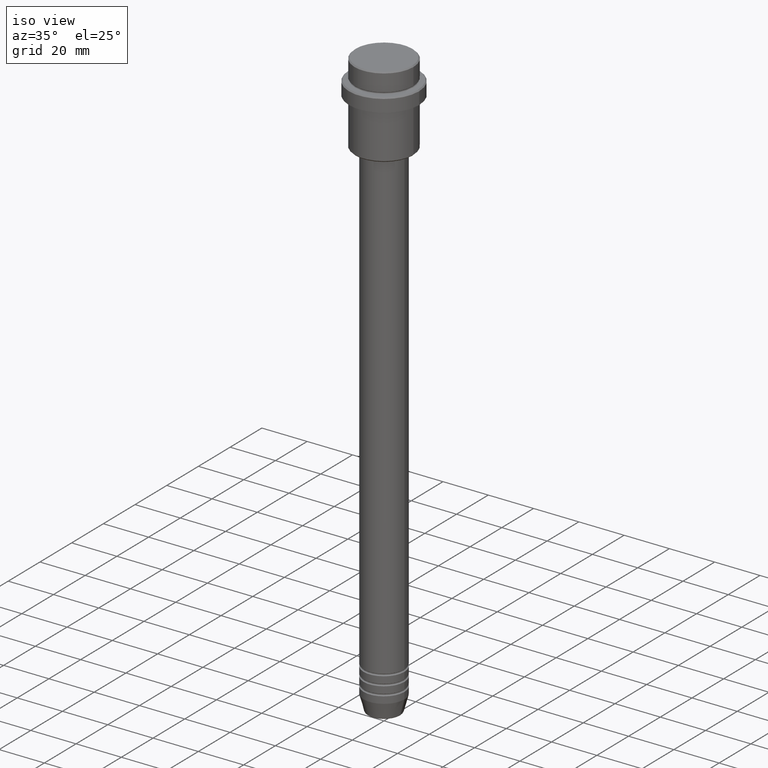
[diagram: clean part render]
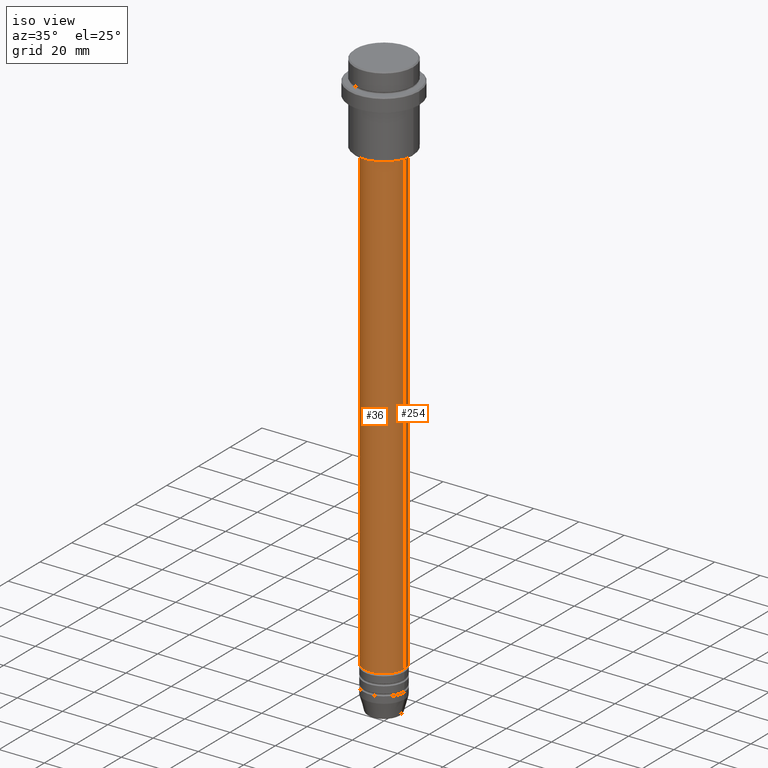
[diagram: same view with one multi-face feature highlighted, each face labeled with its STEP entity id]
A machine part, iso view. The highlighted faces form ONE feature: a constant-radius fillet chain: 2 tangent blend faces with common blend radius 9 mm. The faces share edges in the B-rep.
Their STEP definitions:
[1] entity #36 (Cylinder):
#11 = CARTESIAN_POINT ( 'NONE',  ( -9.000000000000001776, 1.102182119232617911E-15, -37.00000000000000711 ) ) ;
#13 = FACE_OUTER_BOUND ( 'NONE', #1058, .T. ) ;
#25 = AXIS2_PLACEMENT_3D ( 'NONE', #92, #1184, #972 ) ;
#36 = ADVANCED_FACE ( 'NONE', ( #13 ), #925, .T. ) ;
#92 = CARTESIAN_POINT ( 'NONE',  ( 0.000000000000000000, 0.000000000000000000, -37.00000000000000711 ) ) ;
#146 = VECTOR ( 'NONE', #1090, 1000.000000000000000 ) ;
#150 = EDGE_CURVE ( 'NONE', #804, #673, #511, .T. ) ;
#217 = CARTESIAN_POINT ( 'NONE',  ( 0.000000000000000000, 0.000000000000000000, -241.9999999999998863 ) ) ;
#359 = CARTESIAN_POINT ( 'NONE',  ( -9.000000000000000000, 1.102182119232617714E-15, -241.9999999999998863 ) ) ;
#428 = DIRECTION ( 'NONE',  ( 1.000000000000000000, 0.000000000000000000, 0.000000000000000000 ) ) ;
#476 = AXIS2_PLACEMENT_3D ( 'NONE', #217, #1409, #428 ) ;
#511 = LINE ( 'NONE', #753, #146 ) ;
#638 = AXIS2_PLACEMENT_3D ( 'NONE', #680, #898, #1327 ) ;
#661 = DIRECTION ( 'NONE',  ( -0.000000000000000000, -0.000000000000000000, 1.000000000000000000 ) ) ;
#669 = LINE ( 'NONE', #997, #946 ) ;
#673 = VERTEX_POINT ( 'NONE', #11 ) ;
#680 = CARTESIAN_POINT ( 'NONE',  ( 0.000000000000000000, 0.000000000000000000, 0.000000000000000000 ) ) ;
#741 = CIRCLE ( 'NONE', #25, 9.000000000000001776 ) ;
#753 = CARTESIAN_POINT ( 'NONE',  ( -9.000000000000001776, 1.102182119232617911E-15, 0.000000000000000000 ) ) ;
#796 = VERTEX_POINT ( 'NONE', #915 ) ;
#804 = VERTEX_POINT ( 'NONE', #359 ) ;
#826 = ORIENTED_EDGE ( 'NONE', *, *, #150, .F. ) ;
#842 = VERTEX_POINT ( 'NONE', #1041 ) ;
#898 = DIRECTION ( 'NONE',  ( -0.000000000000000000, -0.000000000000000000, 1.000000000000000000 ) ) ;
#915 = CARTESIAN_POINT ( 'NONE',  ( 9.000000000000001776, 0.000000000000000000, -37.00000000000000711 ) ) ;
#925 = CYLINDRICAL_SURFACE ( 'NONE', #638, 9.000000000000001776 ) ;
#946 = VECTOR ( 'NONE', #661, 1000.000000000000000 ) ;
#972 = DIRECTION ( 'NONE',  ( 1.000000000000000000, 0.000000000000000000, 0.000000000000000000 ) ) ;
#997 = CARTESIAN_POINT ( 'NONE',  ( 9.000000000000001776, 0.000000000000000000, 0.000000000000000000 ) ) ;
#1037 = ORIENTED_EDGE ( 'NONE', *, *, #1252, .T. ) ;
#1041 = CARTESIAN_POINT ( 'NONE',  ( 9.000000000000000000, 0.000000000000000000, -241.9999999999998863 ) ) ;
#1043 = ORIENTED_EDGE ( 'NONE', *, *, #1249, .T. ) ;
#1058 = EDGE_LOOP ( 'NONE', ( #826, #1037, #1043, #1135 ) ) ;
#1088 = EDGE_CURVE ( 'NONE', #673, #796, #741, .T. ) ;
#1090 = DIRECTION ( 'NONE',  ( -0.000000000000000000, -0.000000000000000000, 1.000000000000000000 ) ) ;
#1107 = CIRCLE ( 'NONE', #476, 9.000000000000000000 ) ;
#1135 = ORIENTED_EDGE ( 'NONE', *, *, #1088, .F. ) ;
#1184 = DIRECTION ( 'NONE',  ( -0.000000000000000000, -0.000000000000000000, 1.000000000000000000 ) ) ;
#1249 = EDGE_CURVE ( 'NONE', #842, #796, #669, .T. ) ;
#1252 = EDGE_CURVE ( 'NONE', #804, #842, #1107, .T. ) ;
#1327 = DIRECTION ( 'NONE',  ( 1.000000000000000000, 0.000000000000000000, 0.000000000000000000 ) ) ;
#1409 = DIRECTION ( 'NONE',  ( -0.000000000000000000, -0.000000000000000000, 1.000000000000000000 ) ) ;
[2] entity #254 (Cylinder):
#11 = CARTESIAN_POINT ( 'NONE',  ( -9.000000000000001776, 1.102182119232617911E-15, -37.00000000000000711 ) ) ;
#30 = DIRECTION ( 'NONE',  ( 1.000000000000000000, 0.000000000000000000, 0.000000000000000000 ) ) ;
#111 = DIRECTION ( 'NONE',  ( -0.000000000000000000, -0.000000000000000000, 1.000000000000000000 ) ) ;
#146 = VECTOR ( 'NONE', #1090, 1000.000000000000000 ) ;
#150 = EDGE_CURVE ( 'NONE', #804, #673, #511, .T. ) ;
#195 = CYLINDRICAL_SURFACE ( 'NONE', #923, 9.000000000000001776 ) ;
#201 = ORIENTED_EDGE ( 'NONE', *, *, #150, .T. ) ;
#205 = DIRECTION ( 'NONE',  ( 1.000000000000000000, 0.000000000000000000, 0.000000000000000000 ) ) ;
#245 = EDGE_CURVE ( 'NONE', #796, #673, #1055, .T. ) ;
#254 = ADVANCED_FACE ( 'NONE', ( #869 ), #195, .T. ) ;
#275 = ORIENTED_EDGE ( 'NONE', *, *, #360, .T. ) ;
#309 = CARTESIAN_POINT ( 'NONE',  ( 0.000000000000000000, 0.000000000000000000, -37.00000000000000711 ) ) ;
#359 = CARTESIAN_POINT ( 'NONE',  ( -9.000000000000000000, 1.102182119232617714E-15, -241.9999999999998863 ) ) ;
#360 = EDGE_CURVE ( 'NONE', #842, #804, #968, .T. ) ;
#417 = DIRECTION ( 'NONE',  ( -0.000000000000000000, -0.000000000000000000, 1.000000000000000000 ) ) ;
#511 = LINE ( 'NONE', #753, #146 ) ;
#527 = DIRECTION ( 'NONE',  ( -0.000000000000000000, -0.000000000000000000, 1.000000000000000000 ) ) ;
#637 = CARTESIAN_POINT ( 'NONE',  ( 0.000000000000000000, 0.000000000000000000, 0.000000000000000000 ) ) ;
#661 = DIRECTION ( 'NONE',  ( -0.000000000000000000, -0.000000000000000000, 1.000000000000000000 ) ) ;
#664 = CARTESIAN_POINT ( 'NONE',  ( 0.000000000000000000, 0.000000000000000000, -241.9999999999998863 ) ) ;
#669 = LINE ( 'NONE', #997, #946 ) ;
#673 = VERTEX_POINT ( 'NONE', #11 ) ;
#753 = CARTESIAN_POINT ( 'NONE',  ( -9.000000000000001776, 1.102182119232617911E-15, 0.000000000000000000 ) ) ;
#796 = VERTEX_POINT ( 'NONE', #915 ) ;
#804 = VERTEX_POINT ( 'NONE', #359 ) ;
#842 = VERTEX_POINT ( 'NONE', #1041 ) ;
#869 = FACE_OUTER_BOUND ( 'NONE', #1298, .T. ) ;
#915 = CARTESIAN_POINT ( 'NONE',  ( 9.000000000000001776, 0.000000000000000000, -37.00000000000000711 ) ) ;
#923 = AXIS2_PLACEMENT_3D ( 'NONE', #637, #527, #1198 ) ;
#946 = VECTOR ( 'NONE', #661, 1000.000000000000000 ) ;
#968 = CIRCLE ( 'NONE', #1012, 9.000000000000000000 ) ;
#997 = CARTESIAN_POINT ( 'NONE',  ( 9.000000000000001776, 0.000000000000000000, 0.000000000000000000 ) ) ;
#1012 = AXIS2_PLACEMENT_3D ( 'NONE', #664, #111, #30 ) ;
#1041 = CARTESIAN_POINT ( 'NONE',  ( 9.000000000000000000, 0.000000000000000000, -241.9999999999998863 ) ) ;
#1055 = CIRCLE ( 'NONE', #1257, 9.000000000000001776 ) ;
#1090 = DIRECTION ( 'NONE',  ( -0.000000000000000000, -0.000000000000000000, 1.000000000000000000 ) ) ;
#1122 = ORIENTED_EDGE ( 'NONE', *, *, #245, .F. ) ;
#1163 = ORIENTED_EDGE ( 'NONE', *, *, #1249, .F. ) ;
#1198 = DIRECTION ( 'NONE',  ( 1.000000000000000000, 0.000000000000000000, 0.000000000000000000 ) ) ;
#1249 = EDGE_CURVE ( 'NONE', #842, #796, #669, .T. ) ;
#1257 = AXIS2_PLACEMENT_3D ( 'NONE', #309, #417, #205 ) ;
#1298 = EDGE_LOOP ( 'NONE', ( #275, #201, #1122, #1163 ) ) ;